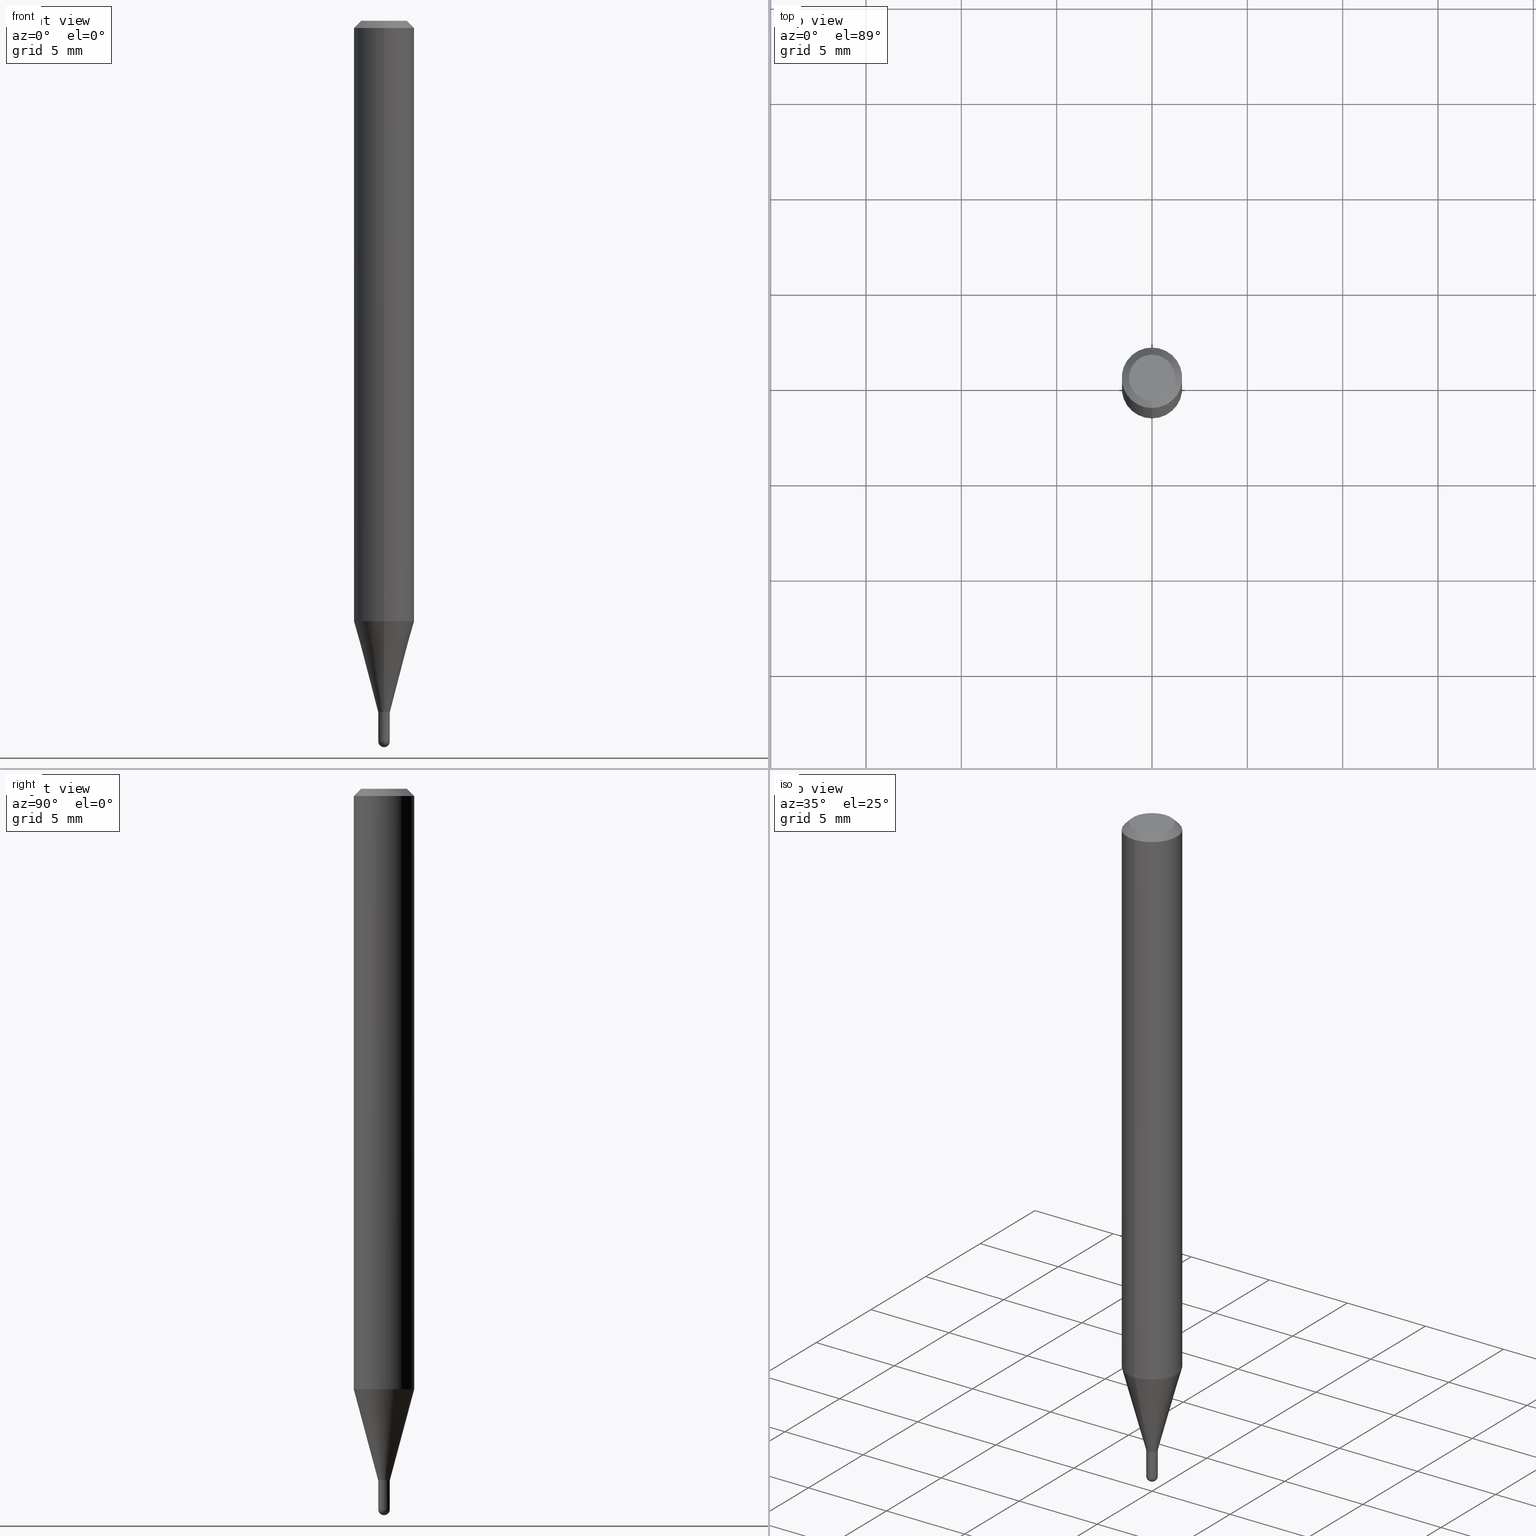
[diagram: canonical four-view strip — front | top / right | iso, engineering-drawing reading convention]
A machine part, canonical four-view strip (front | top / right | iso — engineering-drawing reading convention). The complete STEP part file that produces these views, byte-faithful:
ISO-10303-21;
HEADER;
FILE_DESCRIPTION (( 'STEP AP203' ),
    '1' );
FILE_NAME ('01447.STEP',
    '2024-03-07T21:00:26',
    ( '' ),
    ( '' ),
    'SwSTEP 2.0',
    'SolidWorks 2023',
    '' );
FILE_SCHEMA (( 'CONFIG_CONTROL_DESIGN' ));
ENDSEC;

DATA;
#1 = DIRECTION ( 'NONE',  ( -2.445468806185136597E-29, 3.491481338843145583E-15, 1.000000000000000000 ) ) ;
#2 = DIRECTION ( 'NONE',  ( -2.445468806185136597E-29, 3.491481338843145583E-15, 1.000000000000000000 ) ) ;
#3 = SECURITY_CLASSIFICATION ( '', '', #334 ) ;
#4 = LINE ( 'NONE', #121, #234 ) ;
#5 = EDGE_CURVE ( 'NONE', #444, #247, #473, .T. ) ;
#6 = CYLINDRICAL_SURFACE ( 'NONE', #412, 0.01199999999999992566 ) ;
#7 = ORIENTED_EDGE ( 'NONE', *, *, #118, .F. ) ;
#8 = COORDINATED_UNIVERSAL_TIME_OFFSET ( 5, 0, .BEHIND. ) ;
#9 = UNCERTAINTY_MEASURE_WITH_UNIT (LENGTH_MEASURE( 1.000000000000000082E-05 ), #430, 'distance_accuracy_value', 'NONE');
#10 = VERTEX_POINT ( 'NONE', #462 ) ;
#11 = PERSON_AND_ORGANIZATION ( #366, #189 ) ;
#12 = AXIS2_PLACEMENT_3D ( 'NONE', #195, #117, #429 ) ;
#13 = EDGE_LOOP ( 'NONE', ( #328, #371, #182, #133 ) ) ;
#14 = PERSON_AND_ORGANIZATION_ROLE ( 'creator' ) ;
#15 = EDGE_LOOP ( 'NONE', ( #363, #49, #91, #505, #453 ) ) ;
#16 = APPROVAL_STATUS ( 'not_yet_approved' ) ;
#17 = FACE_OUTER_BOUND ( 'NONE', #410, .T. ) ;
#18 = AXIS2_PLACEMENT_3D ( 'NONE', #276, #425, #73 ) ;
#19 = DIRECTION ( 'NONE',  ( -6.982962677686265922E-15, -1.000000000000000000, 3.491481634362364311E-15 ) ) ;
#20 = EDGE_CURVE ( 'NONE', #207, #258, #253, .T. ) ;
#21 = ORIENTED_EDGE ( 'NONE', *, *, #142, .F. ) ;
#22 = EDGE_CURVE ( 'NONE', #438, #59, #503, .T. ) ;
#23 = EDGE_LOOP ( 'NONE', ( #291, #208, #98, #201 ) ) ;
#24 = CC_DESIGN_PERSON_AND_ORGANIZATION_ASSIGNMENT ( #214, #96, ( #39 ) ) ;
#25 = DIMENSIONAL_EXPONENTS ( 1.000000000000000000, 0.000000000000000000, 0.000000000000000000, 0.000000000000000000, 0.000000000000000000, 0.000000000000000000, 0.000000000000000000 ) ;
#26 = VERTEX_POINT ( 'NONE', #375 ) ;
#27 = CONICAL_SURFACE ( 'NONE', #145, 0.01199999999999992566, 0.2617993877991575125 ) ;
#28 = DIRECTION ( 'NONE',  ( 2.445468599825168733E-29, -3.491481634362364311E-15, -1.000000000000000000 ) ) ;
#29 = CARTESIAN_POINT ( 'NONE',  ( 3.638857583603483825E-29, -5.195324232198600513E-15, -1.487999999999999989 ) ) ;
#30 = FACE_OUTER_BOUND ( 'NONE', #175, .T. ) ;
#31 = DIRECTION ( 'NONE',  ( -4.851104656540964275E-15, -0.7071067811865500152, -0.7071067811865450192 ) ) ;
#32 = CARTESIAN_POINT ( 'NONE',  ( -0.01200000000000000198, 8.526512829121203641E-17, -5.902722108305888753E-31 ) ) ;
#33 = CARTESIAN_POINT ( 'NONE',  ( 8.526512829121146941E-17, 0.01199999999999992566, -4.189777961234811161E-17 ) ) ;
#34 = CARTESIAN_POINT ( 'NONE',  ( 3.492129160550341330E-29, -4.985835773869456367E-15, -1.428000000000000158 ) ) ;
#35 = ADVANCED_FACE ( 'NONE', ( #266 ), #420, .T. ) ;
#36 = DIRECTION ( 'NONE',  ( 1.839019923739649619E-15, 0.2588190451025318972, 0.9659258262890650926 ) ) ;
#37 = CARTESIAN_POINT ( 'NONE',  ( 2.166759901879762675E-46, -3.093559411896288805E-32, -8.860305554668207261E-18 ) ) ;
#38 = DIRECTION ( 'NONE',  ( -6.982962677686265922E-15, -1.000000000000000000, 0.000000000000000000 ) ) ;
#39 = PRODUCT_DEFINITION ( 'UNKNOWN', '', #203, #129 ) ;
#40 = CARTESIAN_POINT ( 'NONE',  ( 2.166759901879762675E-46, -3.093559411896288805E-32, -8.860305554668207261E-18 ) ) ;
#41 = AXIS2_PLACEMENT_3D ( 'NONE', #34, #233, #398 ) ;
#42 = CIRCLE ( 'NONE', #263, 0.01200000000000000198 ) ;
#43 = DIRECTION ( 'NONE',  ( -2.445468599825169014E-29, 3.491481634362364311E-15, 1.000000000000000000 ) ) ;
#44 = ORIENTED_EDGE ( 'NONE', *, *, #326, .T. ) ;
#45 = DIRECTION ( 'NONE',  ( -2.445468806185136597E-29, 3.491481338843145583E-15, 1.000000000000000000 ) ) ;
#46 = VERTEX_POINT ( 'NONE', #309 ) ;
#47 = EDGE_CURVE ( 'NONE', #310, #10, #211, .T. ) ;
#48 = APPROVAL_STATUS ( 'not_yet_approved' ) ;
#49 = ORIENTED_EDGE ( 'NONE', *, *, #190, .T. ) ;
#50 = PERSON_AND_ORGANIZATION ( #366, #189 ) ;
#51 = VECTOR ( 'NONE', #424, 39.37007874015748143 ) ;
#52 = CARTESIAN_POINT ( 'NONE',  ( -8.379555213219975405E-17, -0.01200000000000491125, -1.428000000000000158 ) ) ;
#53 = ORIENTED_EDGE ( 'NONE', *, *, #95, .F. ) ;
#54 = APPROVAL_DATE_TIME ( #489, #396 ) ;
#55 = CARTESIAN_POINT ( 'NONE',  ( 4.440892098500625669E-16, 0.06250000000000000000, -2.182176021476477694E-16 ) ) ;
#56 = EDGE_CURVE ( 'NONE', #46, #325, #498, .T. ) ;
#57 = DIRECTION ( 'NONE',  ( -6.982962677686265922E-15, -1.000000000000000000, 0.000000000000000000 ) ) ;
#58 = CC_DESIGN_SECURITY_CLASSIFICATION ( #3, ( #203 ) ) ;
#59 = VERTEX_POINT ( 'NONE', #374 ) ;
#60 = ADVANCED_FACE ( 'NONE', ( #17 ), #180, .T. ) ;
#61 = ADVANCED_BREP_SHAPE_REPRESENTATION ( '01447', ( #65, #63, #338 ), #188 ) ;
#62 = ORIENTED_EDGE ( 'NONE', *, *, #228, .T. ) ;
#63 = MANIFOLD_SOLID_BREP ( 'Body-Move/Copy2[2]', #382 ) ;
#64 = ORIENTED_EDGE ( 'NONE', *, *, #482, .T. ) ;
#65 = MANIFOLD_SOLID_BREP ( 'Body-Move/Copy2[1]', #485 ) ;
#66 = PLANE ( 'NONE',  #102 ) ;
#67 = CIRCLE ( 'NONE', #496, 0.06250000000000000000 ) ;
#68 = CARTESIAN_POINT ( 'NONE',  ( -0.01200000000000000198, -5.005314663742094257E-15, -1.487999999999999989 ) ) ;
#69 = LINE ( 'NONE', #477, #51 ) ;
#70 = CARTESIAN_POINT ( 'NONE',  ( 3.668202899737756008E-31, -5.237222451543549696E-17, -0.01500000000000000812 ) ) ;
#71 = DIRECTION ( 'NONE',  ( -2.445468599825169014E-29, 3.491481634362364311E-15, 1.000000000000000000 ) ) ;
#72 = DIRECTION ( 'NONE',  ( -6.982962677686265922E-15, -1.000000000000000000, 3.483106191921935554E-15 ) ) ;
#73 = DIRECTION ( 'NONE',  ( -6.982962677686266711E-15, -1.000000000000000000, 0.000000000000000000 ) ) ;
#74 = CARTESIAN_POINT ( 'NONE',  ( 8.171241461244642709E-17, 0.01149999999999501421, -1.428000000000000158 ) ) ;
#75 = CONICAL_SURFACE ( 'NONE', #171, 0.06250000000000000000, 0.7853981633974483900 ) ;
#76 = AXIS2_PLACEMENT_3D ( 'NONE', #237, #456, #460 ) ;
#77 = LOCAL_TIME ( 16, 0, 26.00000000000000000, #288 ) ;
#78 = CARTESIAN_POINT ( 'NONE',  ( -0.01200000000000000025, -5.005314663742094257E-15, -1.428000000000000158 ) ) ;
#79 = CYLINDRICAL_SURFACE ( 'NONE', #76, 0.01199999999999992566 ) ;
#80 = CC_DESIGN_DATE_AND_TIME_ASSIGNMENT ( #248, #246, ( #39 ) ) ;
#81 = DIRECTION ( 'NONE',  ( -2.445468806185136877E-29, 3.491481338843145188E-15, 1.000000000000000000 ) ) ;
#82 =( NAMED_UNIT ( * ) SI_UNIT ( $, .STERADIAN. ) SOLID_ANGLE_UNIT ( ) );
#83 = FACE_OUTER_BOUND ( 'NONE', #183, .T. ) ;
#84 = VERTEX_POINT ( 'NONE', #141 ) ;
#85 = AXIS2_PLACEMENT_3D ( 'NONE', #70, #229, #72 ) ;
#86 = PERSON_AND_ORGANIZATION ( #366, #189 ) ;
#87 = EDGE_CURVE ( 'NONE', #59, #139, #108, .T. ) ;
#88 = ORIENTED_EDGE ( 'NONE', *, *, #136, .F. ) ;
#89 = ORIENTED_EDGE ( 'NONE', *, *, #355, .T. ) ;
#90 = CALENDAR_DATE ( 2024, 7, 3 ) ;
#91 = ORIENTED_EDGE ( 'NONE', *, *, #87, .F. ) ;
#92 = APPROVAL_ROLE ( '' ) ;
#93 = AXIS2_PLACEMENT_3D ( 'NONE', #284, #153, #239 ) ;
#94 = ORIENTED_EDGE ( 'NONE', *, *, #95, .T. ) ;
#95 = EDGE_CURVE ( 'NONE', #84, #305, #391, .T. ) ;
#96 = PERSON_AND_ORGANIZATION_ROLE ( 'creator' ) ;
#97 = CARTESIAN_POINT ( 'NONE',  ( 8.526512829124609301E-17, 0.01199999999999490016, -1.427500000000000213 ) ) ;
#98 = ORIENTED_EDGE ( 'NONE', *, *, #5, .F. ) ;
#99 = EDGE_CURVE ( 'NONE', #84, #167, #390, .T. ) ;
#100 = ORIENTED_EDGE ( 'NONE', *, *, #323, .T. ) ;
#101 = VECTOR ( 'NONE', #302, 39.37007874015748143 ) ;
#102 = AXIS2_PLACEMENT_3D ( 'NONE', #150, #28, #461 ) ;
#103 = ORIENTED_EDGE ( 'NONE', *, *, #336, .F. ) ;
#104 = CARTESIAN_POINT ( 'NONE',  ( 3.492129160550341330E-29, -4.985835773869456367E-15, -1.428000000000000158 ) ) ;
#105 = DIRECTION ( 'NONE',  ( -6.982962677686266711E-15, -1.000000000000000000, 0.000000000000000000 ) ) ;
#106 = ORIENTED_EDGE ( 'NONE', *, *, #47, .F. ) ;
#107 = DIRECTION ( 'NONE',  ( 1.000000000000000000, -7.105427357601001070E-15, 4.926315508542082329E-29 ) ) ;
#108 = CIRCLE ( 'NONE', #317, 0.01200000000000000025 ) ;
#109 = DIRECTION ( 'NONE',  ( 1.000000000000000000, -6.982962677686266711E-15, 4.883557194083112901E-29 ) ) ;
#110 = VECTOR ( 'NONE', #204, 39.37007874015748143 ) ;
#111 = CC_DESIGN_APPROVAL ( #242, ( #203 ) ) ;
#112 = EDGE_CURVE ( 'NONE', #26, #247, #426, .T. ) ;
#113 = DIRECTION ( 'NONE',  ( 6.982962677686265922E-15, 1.000000000000000000, -3.483106191921935554E-15 ) ) ;
#114 = CARTESIAN_POINT ( 'NONE',  ( 0.000000000000000000, 0.000000000000000000, 0.000000000000000000 ) ) ;
#115 = DIRECTION ( 'NONE',  ( 2.438088387897960049E-29, -3.491481338843145188E-15, -1.000000000000000000 ) ) ;
#116 = ADVANCED_FACE ( 'NONE', ( #194 ), #75, .T. ) ;
#117 = DIRECTION ( 'NONE',  ( 2.445468599825169014E-29, -3.491481634362364311E-15, -1.000000000000000000 ) ) ;
#118 = EDGE_CURVE ( 'NONE', #342, #46, #269, .T. ) ;
#119 = VECTOR ( 'NONE', #479, 39.37007874015748143 ) ;
#120 = DIRECTION ( 'NONE',  ( -2.445468599825169014E-29, 3.491481634362364311E-15, 1.000000000000000000 ) ) ;
#121 = CARTESIAN_POINT ( 'NONE',  ( -4.364351673553916201E-16, -0.06250000000000000000, 2.182176021476477694E-16 ) ) ;
#122 = ORIENTED_EDGE ( 'NONE', *, *, #336, .T. ) ;
#123 = DIRECTION ( 'NONE',  ( -6.982962677686265922E-15, -1.000000000000000000, 3.491481634362364311E-15 ) ) ;
#124 = EDGE_LOOP ( 'NONE', ( #491, #224, #7, #418 ) ) ;
#125 = DIRECTION ( 'NONE',  ( 1.000000000000000000, 0.000000000000000000, 0.000000000000000000 ) ) ;
#126 = CYLINDRICAL_SURFACE ( 'NONE', #280, 0.01200000000000000198 ) ;
#127 = ORIENTED_EDGE ( 'NONE', *, *, #506, .T. ) ;
#128 = PRODUCT_DEFINITION_SHAPE ( 'NONE', 'NONE',  #39 ) ;
#129 = DESIGN_CONTEXT ( 'detailed design', #480, 'design' ) ;
#130 = ORIENTED_EDGE ( 'NONE', *, *, #142, .T. ) ;
#131 = PERSON_AND_ORGANIZATION ( #366, #189 ) ;
#132 = EDGE_CURVE ( 'NONE', #241, #444, #69, .T. ) ;
#133 = ORIENTED_EDGE ( 'NONE', *, *, #326, .F. ) ;
#134 = FACE_OUTER_BOUND ( 'NONE', #415, .T. ) ;
#135 = ORIENTED_EDGE ( 'NONE', *, *, #506, .F. ) ;
#136 = EDGE_CURVE ( 'NONE', #26, #241, #200, .T. ) ;
#137 = VECTOR ( 'NONE', #466, 39.37007874015748143 ) ;
#138 = AXIS2_PLACEMENT_3D ( 'NONE', #332, #329, #296 ) ;
#139 = VERTEX_POINT ( 'NONE', #78 ) ;
#140 = ADVANCED_FACE ( 'NONE', ( #428 ), #27, .T. ) ;
#141 = CARTESIAN_POINT ( 'NONE',  ( -3.773273898774340269E-16, -0.04749999999999999362, 1.569850720775441176E-16 ) ) ;
#142 = EDGE_CURVE ( 'NONE', #448, #438, #199, .T. ) ;
#143 = SPHERICAL_SURFACE ( 'NONE', #436, 0.01200000000000015464 ) ;
#144 = ORIENTED_EDGE ( 'NONE', *, *, #370, .F. ) ;
#145 = AXIS2_PLACEMENT_3D ( 'NONE', #155, #120, #38 ) ;
#146 = APPROVAL_PERSON_ORGANIZATION ( #86, #463, #176 ) ;
#147 = DIRECTION ( 'NONE',  ( -2.445468599825169014E-29, 3.491481634362364311E-15, 1.000000000000000000 ) ) ;
#148 = CARTESIAN_POINT ( 'NONE',  ( 3.637831384056468447E-29, -5.196793808357578073E-15, -1.487999999999999989 ) ) ;
#149 = DIRECTION ( 'NONE',  ( -2.445468599825169014E-29, 3.491481634362364311E-15, 1.000000000000000000 ) ) ;
#150 = CARTESIAN_POINT ( 'NONE',  ( 3.316907271900976096E-16, 0.04749999999999999362, -1.702755304095464023E-16 ) ) ;
#151 = CC_DESIGN_PERSON_AND_ORGANIZATION_ASSIGNMENT ( #11, #434, ( #203 ) ) ;
#152 = CONICAL_SURFACE ( 'NONE', #319, 0.01199999999999992566, 0.2617993877991575125 ) ;
#153 = DIRECTION ( 'NONE',  ( -2.445468599825168733E-29, 3.491481634362364311E-15, 1.000000000000000000 ) ) ;
#154 = CARTESIAN_POINT ( 'NONE',  ( -4.364351673553613969E-16, -0.06250000000000434375, -1.239531434217777450 ) ) ;
#155 = CARTESIAN_POINT ( 'NONE',  ( 3.492129160550341330E-29, -4.985835773869456367E-15, -1.428000000000000158 ) ) ;
#156 = CARTESIAN_POINT ( 'NONE',  ( -8.379555213219975405E-17, -0.01200000000000491125, -1.428000000000000158 ) ) ;
#157 = CC_DESIGN_PERSON_AND_ORGANIZATION_ASSIGNMENT ( #301, #14, ( #203 ) ) ;
#158 = FACE_OUTER_BOUND ( 'NONE', #330, .T. ) ;
#159 = CARTESIAN_POINT ( 'NONE',  ( 3.638857583603483825E-29, -5.195324232198600513E-15, -1.487999999999999989 ) ) ;
#160 = LINE ( 'NONE', #318, #427 ) ;
#161 = AXIS2_PLACEMENT_3D ( 'NONE', #417, #380, #184 ) ;
#162 = AXIS2_PLACEMENT_3D ( 'NONE', #443, #492, #411 ) ;
#163 = CARTESIAN_POINT ( 'NONE',  ( 0.000000000000000000, 0.000000000000000000, 0.000000000000000000 ) ) ;
#164 = EDGE_LOOP ( 'NONE', ( #299, #94 ) ) ;
#165 = DIRECTION ( 'NONE',  ( 0.000000000000000000, 0.000000000000000000, 1.000000000000000000 ) ) ;
#166 = DIRECTION ( 'NONE',  ( -2.445468599825169014E-29, 3.491481634362364311E-15, 1.000000000000000000 ) ) ;
#167 = VERTEX_POINT ( 'NONE', #281 ) ;
#168 = DIRECTION ( 'NONE',  ( 1.000000000000000000, -6.982962677686250144E-15, 0.000000000000000000 ) ) ;
#169 = DATE_TIME_ROLE ( 'classification_date' ) ;
#170 = ORIENTED_EDGE ( 'NONE', *, *, #219, .F. ) ;
#171 = AXIS2_PLACEMENT_3D ( 'NONE', #315, #507, #113 ) ;
#172 = CIRCLE ( 'NONE', #359, 0.04749999999999999362 ) ;
#173 = CC_DESIGN_APPROVAL ( #396, ( #39 ) ) ;
#174 = COORDINATED_UNIVERSAL_TIME_OFFSET ( 5, 0, .BEHIND. ) ;
#175 = EDGE_LOOP ( 'NONE', ( #304, #127, #62, #103 ) ) ;
#176 = APPROVAL_ROLE ( '' ) ;
#177 = ADVANCED_FACE ( 'NONE', ( #191 ), #273, .F. ) ;
#178 = ORIENTED_EDGE ( 'NONE', *, *, #458, .T. ) ;
#179 = CARTESIAN_POINT ( 'NONE',  ( -8.030407079335712901E-17, -0.01150000000000498540, -1.428000000000000158 ) ) ;
#180 = CYLINDRICAL_SURFACE ( 'NONE', #446, 0.01200000000000000198 ) ;
#181 = CIRCLE ( 'NONE', #402, 0.01199999999999992566 ) ;
#182 = ORIENTED_EDGE ( 'NONE', *, *, #439, .F. ) ;
#183 = EDGE_LOOP ( 'NONE', ( #225, #481 ) ) ;
#184 = DIRECTION ( 'NONE',  ( -6.982962677686265922E-15, -1.000000000000000000, 0.000000000000000000 ) ) ;
#185 = CARTESIAN_POINT ( 'NONE',  ( 0.000000000000000000, 0.000000000000000000, 0.000000000000000000 ) ) ;
#186 = ADVANCED_FACE ( 'NONE', ( #468 ), #152, .T. ) ;
#187 = DIRECTION ( 'NONE',  ( -6.982962677686266711E-15, -1.000000000000000000, 3.491481634362365100E-15 ) ) ;
#188 =( GEOMETRIC_REPRESENTATION_CONTEXT ( 3 ) GLOBAL_UNCERTAINTY_ASSIGNED_CONTEXT ( ( #9 ) ) GLOBAL_UNIT_ASSIGNED_CONTEXT ( ( #430, #478, #82 ) ) REPRESENTATION_CONTEXT ( 'NONE', 'WORKASPACE' ) );
#189 = ORGANIZATION ( 'UNSPECIFIED', 'UNSPECIFIED', '' ) ;
#190 = EDGE_CURVE ( 'NONE', #308, #139, #313, .T. ) ;
#191 = FACE_OUTER_BOUND ( 'NONE', #297, .T. ) ;
#192 = DIRECTION ( 'NONE',  ( -6.982962677686265922E-15, -1.000000000000000000, 3.491481634362364311E-15 ) ) ;
#193 = CARTESIAN_POINT ( 'NONE',  ( 0.000000000000000000, 0.000000000000000000, 0.000000000000000000 ) ) ;
#194 = FACE_OUTER_BOUND ( 'NONE', #499, .T. ) ;
#195 = CARTESIAN_POINT ( 'NONE',  ( 3.668202899737756008E-31, -5.237222451543549696E-17, -0.01500000000000000812 ) ) ;
#196 = DIRECTION ( 'NONE',  ( -6.982962677686266711E-15, -1.000000000000000000, 3.491481634362365100E-15 ) ) ;
#197 = FACE_OUTER_BOUND ( 'NONE', #13, .T. ) ;
#198 = FACE_OUTER_BOUND ( 'NONE', #256, .T. ) ;
#199 = CIRCLE ( 'NONE', #344, 0.01200000000000000198 ) ;
#200 = CIRCLE ( 'NONE', #343, 0.01149999999999999981 ) ;
#201 = ORIENTED_EDGE ( 'NONE', *, *, #132, .F. ) ;
#202 = AXIS2_PLACEMENT_3D ( 'NONE', #403, #115, #350 ) ;
#203 = PRODUCT_DEFINITION_FORMATION_WITH_SPECIFIED_SOURCE ( 'ANY', '', #442, .NOT_KNOWN. ) ;
#204 = DIRECTION ( 'NONE',  ( -2.445468599825169014E-29, 3.491481634362364311E-15, 1.000000000000000000 ) ) ;
#205 = DIRECTION ( 'NONE',  ( 4.937700262164548042E-15, 0.7071067811865451302, -0.7071067811865499042 ) ) ;
#206 = EDGE_CURVE ( 'NONE', #10, #308, #367, .T. ) ;
#207 = VERTEX_POINT ( 'NONE', #459 ) ;
#208 = ORIENTED_EDGE ( 'NONE', *, *, #112, .T. ) ;
#209 = APPROVAL_ROLE ( '' ) ;
#210 = ORIENTED_EDGE ( 'NONE', *, *, #99, .F. ) ;
#211 = CIRCLE ( 'NONE', #226, 0.01200000000000015464 ) ;
#212 = AXIS2_PLACEMENT_3D ( 'NONE', #267, #272, #423 ) ;
#213 = CC_DESIGN_PERSON_AND_ORGANIZATION_ASSIGNMENT ( #50, #369, ( #442 ) ) ;
#214 = PERSON_AND_ORGANIZATION ( #366, #189 ) ;
#215 = ORIENTED_EDGE ( 'NONE', *, *, #439, .T. ) ;
#216 = CALENDAR_DATE ( 2024, 7, 3 ) ;
#217 = DIRECTION ( 'NONE',  ( -2.445468599825169014E-29, 3.491481634362364311E-15, 1.000000000000000000 ) ) ;
#218 = COORDINATED_UNIVERSAL_TIME_OFFSET ( 5, 0, .BEHIND. ) ;
#219 = EDGE_CURVE ( 'NONE', #258, #207, #181, .T. ) ;
#220 = ORIENTED_EDGE ( 'NONE', *, *, #228, .F. ) ;
#221 = VECTOR ( 'NONE', #394, 39.37007874015748854 ) ;
#222 = EDGE_LOOP ( 'NONE', ( #53, #368, #215, #361 ) ) ;
#223 = DIRECTION ( 'NONE',  ( -2.445468599825169014E-29, 3.491481634362364311E-15, 1.000000000000000000 ) ) ;
#224 = ORIENTED_EDGE ( 'NONE', *, *, #346, .T. ) ;
#225 = ORIENTED_EDGE ( 'NONE', *, *, #87, .T. ) ;
#226 = AXIS2_PLACEMENT_3D ( 'NONE', #339, #107, #268 ) ;
#227 = CIRCLE ( 'NONE', #85, 0.06250000000000000000 ) ;
#228 = EDGE_CURVE ( 'NONE', #247, #444, #376, .T. ) ;
#229 = DIRECTION ( 'NONE',  ( -2.445468599825169014E-29, 3.491481634362364311E-15, 1.000000000000000000 ) ) ;
#230 = EDGE_CURVE ( 'NONE', #310, #448, #502, .T. ) ;
#231 = DIRECTION ( 'NONE',  ( -6.982962677686265133E-15, -1.000000000000000000, 0.000000000000000000 ) ) ;
#232 = AXIS2_PLACEMENT_3D ( 'NONE', #37, #235, #196 ) ;
#233 = DIRECTION ( 'NONE',  ( -2.445468599825169014E-29, 3.491481634362364311E-15, 1.000000000000000000 ) ) ;
#234 = VECTOR ( 'NONE', #240, 39.37007874015748143 ) ;
#235 = DIRECTION ( 'NONE',  ( -2.445468599825169014E-29, 3.491481634362364311E-15, 1.000000000000000000 ) ) ;
#236 = CYLINDRICAL_SURFACE ( 'NONE', #300, 0.06250000000000000000 ) ;
#237 = CARTESIAN_POINT ( 'NONE',  ( 0.000000000000000000, 0.000000000000000000, 0.000000000000000000 ) ) ;
#238 = DIRECTION ( 'NONE',  ( 1.000000000000000000, -6.982962677686251722E-15, 0.000000000000000000 ) ) ;
#239 = DIRECTION ( 'NONE',  ( -6.982962677686265922E-15, -1.000000000000000000, 3.491481634362364311E-15 ) ) ;
#240 = DIRECTION ( 'NONE',  ( -2.445468599825169014E-29, 3.491481634362364311E-15, 1.000000000000000000 ) ) ;
#241 = VERTEX_POINT ( 'NONE', #179 ) ;
#242 = APPROVAL ( #48, 'UNSPECIFIED' ) ;
#243 = FACE_OUTER_BOUND ( 'NONE', #294, .T. ) ;
#244 = CIRCLE ( 'NONE', #508, 0.01200000000000000198 ) ;
#245 = ORIENTED_EDGE ( 'NONE', *, *, #230, .T. ) ;
#246 = DATE_TIME_ROLE ( 'creation_date' ) ;
#247 = VERTEX_POINT ( 'NONE', #97 ) ;
#248 = DATE_AND_TIME ( #90, #77 ) ;
#249 = ORIENTED_EDGE ( 'NONE', *, *, #22, .T. ) ;
#250 = EDGE_CURVE ( 'NONE', #139, #59, #254, .T. ) ;
#251 = DATE_AND_TIME ( #331, #385 ) ;
#252 = ORIENTED_EDGE ( 'NONE', *, *, #307, .F. ) ;
#253 = CIRCLE ( 'NONE', #262, 0.01199999999999992566 ) ;
#254 = CIRCLE ( 'NONE', #162, 0.01200000000000000025 ) ;
#255 = DATE_AND_TIME ( #216, #455 ) ;
#256 = EDGE_LOOP ( 'NONE', ( #440, #488, #413, #21 ) ) ;
#257 = MECHANICAL_CONTEXT ( 'NONE', #490, 'mechanical' ) ;
#258 = VERTEX_POINT ( 'NONE', #52 ) ;
#259 = CC_DESIGN_DATE_AND_TIME_ASSIGNMENT ( #293, #169, ( #3 ) ) ;
#260 = DIRECTION ( 'NONE',  ( -6.982962677686265922E-15, -1.000000000000000000, 0.000000000000000000 ) ) ;
#261 = ORIENTED_EDGE ( 'NONE', *, *, #346, .F. ) ;
#262 = AXIS2_PLACEMENT_3D ( 'NONE', #381, #147, #57 ) ;
#263 = AXIS2_PLACEMENT_3D ( 'NONE', #159, #316, #279 ) ;
#264 = EDGE_LOOP ( 'NONE', ( #261, #419, #64, #493 ) ) ;
#265 = FACE_OUTER_BOUND ( 'NONE', #164, .T. ) ;
#266 = FACE_OUTER_BOUND ( 'NONE', #322, .T. ) ;
#267 = CARTESIAN_POINT ( 'NONE',  ( 3.668202899737756008E-31, -5.237222451543549696E-17, -0.01500000000000000812 ) ) ;
#268 = DIRECTION ( 'NONE',  ( 7.105427357601001070E-15, 1.000000000000000000, 0.000000000000000000 ) ) ;
#269 = CIRCLE ( 'NONE', #500, 0.06250000000000000000 ) ;
#270 = CONICAL_SURFACE ( 'NONE', #337, 0.01149999999999999981, 0.7853981633974739252 ) ;
#271 = ADVANCED_FACE ( 'NONE', ( #134 ), #143, .T. ) ;
#272 = DIRECTION ( 'NONE',  ( -2.445468599825169014E-29, 3.491481634362364311E-15, 1.000000000000000000 ) ) ;
#273 = PLANE ( 'NONE',  #93 ) ;
#274 = DIRECTION ( 'NONE',  ( -2.445468806185136597E-29, 3.491481338843145583E-15, 1.000000000000000000 ) ) ;
#275 = CARTESIAN_POINT ( 'NONE',  ( 3.492129160550341330E-29, -4.985835773869456367E-15, -1.428000000000000158 ) ) ;
#276 = CARTESIAN_POINT ( 'NONE',  ( 3.637831384056468447E-29, -5.196793808357578073E-15, -1.487999999999999989 ) ) ;
#277 = CARTESIAN_POINT ( 'NONE',  ( -4.287811248607203282E-16, -0.06250000000000005551, -0.01499999999999979128 ) ) ;
#278 = DIRECTION ( 'NONE',  ( -2.445468599825169014E-29, 3.491481634362364311E-15, 1.000000000000000000 ) ) ;
#279 = DIRECTION ( 'NONE',  ( 1.000000000000000000, -6.982962677686250144E-15, 0.000000000000000000 ) ) ;
#280 = AXIS2_PLACEMENT_3D ( 'NONE', #389, #289, #431 ) ;
#281 = CARTESIAN_POINT ( 'NONE',  ( -4.364351673553912750E-16, -0.06250000000000005551, -0.01499999999999979128 ) ) ;
#282 = LINE ( 'NONE', #156, #221 ) ;
#283 = LINE ( 'NONE', #483, #421 ) ;
#284 = CARTESIAN_POINT ( 'NONE',  ( 3.492129160550341330E-29, -4.985835773869456367E-15, -1.428000000000000158 ) ) ;
#285 = DIRECTION ( 'NONE',  ( -2.445468599825169014E-29, 3.491481634362364311E-15, 1.000000000000000000 ) ) ;
#286 = CARTESIAN_POINT ( 'NONE',  ( 3.492129160550341330E-29, -4.985835773869456367E-15, -1.428000000000000158 ) ) ;
#287 = ORIENTED_EDGE ( 'NONE', *, *, #132, .T. ) ;
#288 = COORDINATED_UNIVERSAL_TIME_OFFSET ( 5, 0, .BEHIND. ) ;
#289 = DIRECTION ( 'NONE',  ( -2.445468806185136597E-29, 3.491481338843145583E-15, 1.000000000000000000 ) ) ;
#290 = AXIS2_PLACEMENT_3D ( 'NONE', #383, #451, #260 ) ;
#291 = ORIENTED_EDGE ( 'NONE', *, *, #370, .T. ) ;
#292 = APPROVAL_PERSON_ORGANIZATION ( #131, #242, #92 ) ;
#293 = DATE_AND_TIME ( #372, #487 ) ;
#294 = EDGE_LOOP ( 'NONE', ( #135, #170, #122, #408 ) ) ;
#295 = CALENDAR_DATE ( 2024, 7, 3 ) ;
#296 = DIRECTION ( 'NONE',  ( -6.982962677686266711E-15, -1.000000000000000000, 0.000000000000000000 ) ) ;
#297 = EDGE_LOOP ( 'NONE', ( #144, #88 ) ) ;
#298 = APPROVAL_DATE_TIME ( #251, #463 ) ;
#299 = ORIENTED_EDGE ( 'NONE', *, *, #373, .T. ) ;
#300 = AXIS2_PLACEMENT_3D ( 'NONE', #163, #285, #192 ) ;
#301 = PERSON_AND_ORGANIZATION ( #366, #189 ) ;
#302 = DIRECTION ( 'NONE',  ( -2.445468806185136877E-29, 3.491481338843145188E-15, 1.000000000000000000 ) ) ;
#303 = ADVANCED_FACE ( 'NONE', ( #265 ), #66, .F. ) ;
#304 = ORIENTED_EDGE ( 'NONE', *, *, #20, .F. ) ;
#305 = VERTEX_POINT ( 'NONE', #504 ) ;
#306 = VECTOR ( 'NONE', #217, 39.37007874015748143 ) ;
#307 = EDGE_CURVE ( 'NONE', #325, #167, #464, .T. ) ;
#308 = VERTEX_POINT ( 'NONE', #68 ) ;
#309 = CARTESIAN_POINT ( 'NONE',  ( 4.440892098500927901E-16, 0.06249999999999567013, -1.239531434217777894 ) ) ;
#310 = VERTEX_POINT ( 'NONE', #395 ) ;
#311 = PRODUCT_RELATED_PRODUCT_CATEGORY ( 'detail', '', ( #442 ) ) ;
#312 = CARTESIAN_POINT ( 'NONE',  ( 3.638857583603483825E-29, -5.195324232198600513E-15, -1.487999999999999989 ) ) ;
#313 = LINE ( 'NONE', #32, #384 ) ;
#314 = SPHERICAL_SURFACE ( 'NONE', #18, 0.01200000000000015464 ) ;
#315 = CARTESIAN_POINT ( 'NONE',  ( 3.668202899737756008E-31, -5.237222451543549696E-17, -0.01500000000000000812 ) ) ;
#316 = DIRECTION ( 'NONE',  ( -2.445468806185136597E-29, 3.491481338843145583E-15, 1.000000000000000000 ) ) ;
#317 = AXIS2_PLACEMENT_3D ( 'NONE', #320, #274, #238 ) ;
#318 = CARTESIAN_POINT ( 'NONE',  ( 4.364351673553919652E-16, 0.06249999999999995143, -0.01500000000000022669 ) ) ;
#319 = AXIS2_PLACEMENT_3D ( 'NONE', #275, #71, #386 ) ;
#320 = CARTESIAN_POINT ( 'NONE',  ( 3.492129455232375114E-29, -4.985835351868012196E-15, -1.428000000000000158 ) ) ;
#321 = CARTESIAN_POINT ( 'NONE',  ( 3.031235200875832251E-29, -4.327801237786212158E-15, -1.239531434217777672 ) ) ;
#322 = EDGE_LOOP ( 'NONE', ( #340, #178, #44, #252 ) ) ;
#323 = EDGE_CURVE ( 'NONE', #305, #325, #160, .T. ) ;
#324 = FACE_OUTER_BOUND ( 'NONE', #15, .T. ) ;
#325 = VERTEX_POINT ( 'NONE', #358 ) ;
#326 = EDGE_CURVE ( 'NONE', #342, #167, #4, .T. ) ;
#327 = COORDINATED_UNIVERSAL_TIME_OFFSET ( 5, 0, .BEHIND. ) ;
#328 = ORIENTED_EDGE ( 'NONE', *, *, #118, .T. ) ;
#329 = DIRECTION ( 'NONE',  ( -1.000000000000000000, 6.982962677686265922E-15, -4.883557194083112340E-29 ) ) ;
#330 = EDGE_LOOP ( 'NONE', ( #484, #377, #287, #220 ) ) ;
#331 = CALENDAR_DATE ( 2024, 7, 3 ) ;
#332 = CARTESIAN_POINT ( 'NONE',  ( 3.637831384056468447E-29, -5.196793808357578073E-15, -1.487999999999999989 ) ) ;
#333 = ORIENTED_EDGE ( 'NONE', *, *, #206, .F. ) ;
#334 = SECURITY_CLASSIFICATION_LEVEL ( 'unclassified' ) ;
#335 = CARTESIAN_POINT ( 'NONE',  ( 0.000000000000000000, 0.000000000000000000, 0.000000000000000000 ) ) ;
#336 = EDGE_CURVE ( 'NONE', #258, #444, #362, .T. ) ;
#337 = AXIS2_PLACEMENT_3D ( 'NONE', #511, #471, #476 ) ;
#338 = AXIS2_PLACEMENT_3D ( 'NONE', #114, #165, #125 ) ;
#339 = CARTESIAN_POINT ( 'NONE',  ( 3.637831384056468447E-29, -5.196793808357578073E-15, -1.487999999999999989 ) ) ;
#340 = ORIENTED_EDGE ( 'NONE', *, *, #56, .F. ) ;
#341 = ADVANCED_FACE ( 'NONE', ( #30 ), #6, .F. ) ;
#342 = VERTEX_POINT ( 'NONE', #154 ) ;
#343 = AXIS2_PLACEMENT_3D ( 'NONE', #347, #393, #231 ) ;
#344 = AXIS2_PLACEMENT_3D ( 'NONE', #29, #2, #475 ) ;
#345 = ORIENTED_EDGE ( 'NONE', *, *, #307, .T. ) ;
#346 = EDGE_CURVE ( 'NONE', #207, #46, #283, .T. ) ;
#347 = CARTESIAN_POINT ( 'NONE',  ( 3.492129160550341330E-29, -4.985835773869456367E-15, -1.428000000000000158 ) ) ;
#348 = APPLICATION_PROTOCOL_DEFINITION ( 'international standard', 'config_control_design', 1994, #490 ) ;
#349 = LOCAL_TIME ( 16, 0, 26.00000000000000000, #8 ) ;
#350 = DIRECTION ( 'NONE',  ( -1.000000000000000000, 6.982962677686265922E-15, -4.876176775795935793E-29 ) ) ;
#351 = ADVANCED_FACE ( 'NONE', ( #324 ), #126, .T. ) ;
#352 =( LENGTH_UNIT ( ) NAMED_UNIT ( * ) SI_UNIT ( $, .METRE. ) );
#353 = PLANE ( 'NONE',  #202 ) ;
#354 = DIRECTION ( 'NONE',  ( -2.445468599825169014E-29, 3.491481634362364311E-15, 1.000000000000000000 ) ) ;
#355 = EDGE_CURVE ( 'NONE', #308, #448, #244, .T. ) ;
#356 = CARTESIAN_POINT ( 'NONE',  ( -8.379555213223467347E-17, -0.01199999999999992566, 4.189777961234811161E-17 ) ) ;
#357 = VECTOR ( 'NONE', #31, 39.37007874015748143 ) ;
#358 = CARTESIAN_POINT ( 'NONE',  ( 4.440892098500930859E-16, 0.06249999999999995143, -0.01500000000000022669 ) ) ;
#359 = AXIS2_PLACEMENT_3D ( 'NONE', #40, #433, #187 ) ;
#360 = APPROVAL_PERSON_ORGANIZATION ( #494, #396, #209 ) ;
#361 = ORIENTED_EDGE ( 'NONE', *, *, #323, .F. ) ;
#362 = LINE ( 'NONE', #356, #119 ) ;
#363 = ORIENTED_EDGE ( 'NONE', *, *, #206, .T. ) ;
#364 = PERSON_AND_ORGANIZATION ( #366, #189 ) ;
#365 = ORIENTED_EDGE ( 'NONE', *, *, #190, .F. ) ;
#366 = PERSON ( 'UNSPECIFIED', 'UNSPECIFIED', 'UNSPECIFIED', ('UNSPECIFIED'), ('UNSPECIFIED'), ('UNSPECIFIED') ) ;
#367 = CIRCLE ( 'NONE', #486, 0.01200000000000000198 ) ;
#368 = ORIENTED_EDGE ( 'NONE', *, *, #99, .T. ) ;
#369 = PERSON_AND_ORGANIZATION_ROLE ( 'design_owner' ) ;
#370 = EDGE_CURVE ( 'NONE', #241, #26, #454, .T. ) ;
#371 = ORIENTED_EDGE ( 'NONE', *, *, #56, .T. ) ;
#372 = CALENDAR_DATE ( 2024, 7, 3 ) ;
#373 = EDGE_CURVE ( 'NONE', #305, #84, #172, .T. ) ;
#374 = CARTESIAN_POINT ( 'NONE',  ( 0.01200000000000000025, -5.069630904000247523E-15, -1.428000000000000158 ) ) ;
#375 = CARTESIAN_POINT ( 'NONE',  ( 8.348877145184642029E-17, 0.01149999999999501421, -1.428000000000000158 ) ) ;
#376 = CIRCLE ( 'NONE', #290, 0.01199999999999992566 ) ;
#377 = ORIENTED_EDGE ( 'NONE', *, *, #136, .T. ) ;
#378 = ADVANCED_FACE ( 'NONE', ( #83 ), #353, .F. ) ;
#379 = DIRECTION ( 'NONE',  ( -6.982962677686265922E-15, -1.000000000000000000, 0.000000000000000000 ) ) ;
#380 = DIRECTION ( 'NONE',  ( -2.445468599825169014E-29, 3.491481634362364311E-15, 1.000000000000000000 ) ) ;
#381 = CARTESIAN_POINT ( 'NONE',  ( 3.492129160550341330E-29, -4.985835773869456367E-15, -1.428000000000000158 ) ) ;
#382 = CLOSED_SHELL ( 'NONE', ( #341, #465, #416, #435, #186, #140, #35, #116, #303, #177, #405, #422 ) ) ;
#383 = CARTESIAN_POINT ( 'NONE',  ( 3.490906426250429498E-29, -4.984090033052276483E-15, -1.427500000000000213 ) ) ;
#384 = VECTOR ( 'NONE', #81, 39.37007874015748143 ) ;
#385 = LOCAL_TIME ( 16, 0, 26.00000000000000000, #327 ) ;
#386 = DIRECTION ( 'NONE',  ( -6.982962677686265922E-15, -1.000000000000000000, 0.000000000000000000 ) ) ;
#387 = ADVANCED_FACE ( 'NONE', ( #198 ), #314, .T. ) ;
#388 = CARTESIAN_POINT ( 'NONE',  ( 3.031235200875832251E-29, -4.327801237786212158E-15, -1.239531434217777672 ) ) ;
#389 = CARTESIAN_POINT ( 'NONE',  ( 0.000000000000000000, 0.000000000000000000, 0.000000000000000000 ) ) ;
#390 = LINE ( 'NONE', #277, #357 ) ;
#391 = CIRCLE ( 'NONE', #232, 0.04749999999999999362 ) ;
#392 = AXIS2_PLACEMENT_3D ( 'NONE', #286, #43, #400 ) ;
#393 = DIRECTION ( 'NONE',  ( -2.445468599825169014E-29, 3.491481634362364311E-15, 1.000000000000000000 ) ) ;
#394 = DIRECTION ( 'NONE',  ( -1.807323732225379049E-15, -0.2588190451025252359, 0.9659258262890670910 ) ) ;
#395 = CARTESIAN_POINT ( 'NONE',  ( 3.666663909957182668E-29, -5.239426372503184911E-15, -1.500000000000000222 ) ) ;
#396 = APPROVAL ( #441, 'UNSPECIFIED' ) ;
#397 = DIRECTION ( 'NONE',  ( -6.982962677686265922E-15, -1.000000000000000000, 4.370956789862821150E-15 ) ) ;
#398 = DIRECTION ( 'NONE',  ( -6.982962677686265133E-15, -1.000000000000000000, 0.000000000000000000 ) ) ;
#399 = CARTESIAN_POINT ( 'NONE',  ( 3.638857583603483825E-29, -5.195324232198600513E-15, -1.487999999999999989 ) ) ;
#400 = DIRECTION ( 'NONE',  ( -6.982962677686265133E-15, -1.000000000000000000, 0.000000000000000000 ) ) ;
#401 = CARTESIAN_POINT ( 'NONE',  ( -8.379555213219935962E-17, -0.01200000000000527381, -1.487999999999999989 ) ) ;
#402 = AXIS2_PLACEMENT_3D ( 'NONE', #104, #223, #379 ) ;
#403 = CARTESIAN_POINT ( 'NONE',  ( 8.379555213227011058E-17, 0.01199999999999501465, -1.428000000000000158 ) ) ;
#404 = CC_DESIGN_APPROVAL ( #463, ( #3 ) ) ;
#405 = ADVANCED_FACE ( 'NONE', ( #158 ), #474, .T. ) ;
#406 = ORIENTED_EDGE ( 'NONE', *, *, #373, .F. ) ;
#407 = SHAPE_DEFINITION_REPRESENTATION ( #128, #61 ) ;
#408 = ORIENTED_EDGE ( 'NONE', *, *, #5, .T. ) ;
#409 = APPLICATION_PROTOCOL_DEFINITION ( 'international standard', 'config_control_design', 1994, #480 ) ;
#410 = EDGE_LOOP ( 'NONE', ( #365, #89, #130, #249, #501 ) ) ;
#411 = DIRECTION ( 'NONE',  ( 1.000000000000000000, -6.982962677686251722E-15, 0.000000000000000000 ) ) ;
#412 = AXIS2_PLACEMENT_3D ( 'NONE', #193, #166, #123 ) ;
#413 = ORIENTED_EDGE ( 'NONE', *, *, #470, .F. ) ;
#414 = APPROVAL_DATE_TIME ( #255, #242 ) ;
#415 = EDGE_LOOP ( 'NONE', ( #106, #245, #452, #333 ) ) ;
#416 = ADVANCED_FACE ( 'NONE', ( #472 ), #447, .T. ) ;
#417 = CARTESIAN_POINT ( 'NONE',  ( 3.490906426250429498E-29, -4.984090033052276483E-15, -1.427500000000000213 ) ) ;
#418 = ORIENTED_EDGE ( 'NONE', *, *, #482, .F. ) ;
#419 = ORIENTED_EDGE ( 'NONE', *, *, #20, .T. ) ;
#420 = CYLINDRICAL_SURFACE ( 'NONE', #495, 0.06250000000000000000 ) ;
#421 = VECTOR ( 'NONE', #36, 39.37007874015748854 ) ;
#422 = ADVANCED_FACE ( 'NONE', ( #243 ), #79, .F. ) ;
#423 = DIRECTION ( 'NONE',  ( -6.982962677686265922E-15, -1.000000000000000000, 3.483106191921935554E-15 ) ) ;
#424 = DIRECTION ( 'NONE',  ( -4.937700262164674260E-15, -0.7071067811865632269, 0.7071067811865319186 ) ) ;
#425 = DIRECTION ( 'NONE',  ( 1.000000000000000000, -6.982962677686266711E-15, 4.883557194083112901E-29 ) ) ;
#426 = LINE ( 'NONE', #74, #137 ) ;
#427 = VECTOR ( 'NONE', #205, 39.37007874015748143 ) ;
#428 = FACE_OUTER_BOUND ( 'NONE', #264, .T. ) ;
#429 = DIRECTION ( 'NONE',  ( 6.982962677686265922E-15, 1.000000000000000000, -3.483106191921935554E-15 ) ) ;
#430 =( CONVERSION_BASED_UNIT ( 'INCH', #467 ) LENGTH_UNIT ( ) NAMED_UNIT ( #25 ) );
#431 = DIRECTION ( 'NONE',  ( 1.000000000000000000, -6.982962677686266711E-15, 4.876176775795935232E-29 ) ) ;
#432 = FACE_OUTER_BOUND ( 'NONE', #23, .T. ) ;
#433 = DIRECTION ( 'NONE',  ( -2.445468599825169014E-29, 3.491481634362364311E-15, 1.000000000000000000 ) ) ;
#434 = PERSON_AND_ORGANIZATION_ROLE ( 'design_supplier' ) ;
#435 = ADVANCED_FACE ( 'NONE', ( #197 ), #236, .T. ) ;
#436 = AXIS2_PLACEMENT_3D ( 'NONE', #148, #109, #105 ) ;
#437 = DIRECTION ( 'NONE',  ( 1.000000000000000000, -6.982962677686250144E-15, 0.000000000000000000 ) ) ;
#438 = VERTEX_POINT ( 'NONE', #509 ) ;
#439 = EDGE_CURVE ( 'NONE', #167, #325, #227, .T. ) ;
#440 = ORIENTED_EDGE ( 'NONE', *, *, #230, .F. ) ;
#441 = APPROVAL_STATUS ( 'not_yet_approved' ) ;
#442 = PRODUCT ( '01447', '01447', '', ( #257 ) ) ;
#443 = CARTESIAN_POINT ( 'NONE',  ( 3.492129455232375114E-29, -4.985835351868012196E-15, -1.428000000000000158 ) ) ;
#444 = VERTEX_POINT ( 'NONE', #512 ) ;
#445 = CC_DESIGN_PERSON_AND_ORGANIZATION_ASSIGNMENT ( #364, #449, ( #3 ) ) ;
#446 = AXIS2_PLACEMENT_3D ( 'NONE', #335, #497, #450 ) ;
#447 = CONICAL_SURFACE ( 'NONE', #12, 0.06250000000000000000, 0.7853981633974483900 ) ;
#448 = VERTEX_POINT ( 'NONE', #401 ) ;
#449 = PERSON_AND_ORGANIZATION_ROLE ( 'classification_officer' ) ;
#450 = DIRECTION ( 'NONE',  ( 1.000000000000000000, -6.982962677686266711E-15, 4.876176775795935232E-29 ) ) ;
#451 = DIRECTION ( 'NONE',  ( -2.445468599825169014E-29, 3.491481634362364311E-15, 1.000000000000000000 ) ) ;
#452 = ORIENTED_EDGE ( 'NONE', *, *, #355, .F. ) ;
#453 = ORIENTED_EDGE ( 'NONE', *, *, #470, .T. ) ;
#454 = CIRCLE ( 'NONE', #392, 0.01149999999999999981 ) ;
#455 = LOCAL_TIME ( 16, 0, 26.00000000000000000, #174 ) ;
#456 = DIRECTION ( 'NONE',  ( -2.445468599825169014E-29, 3.491481634362364311E-15, 1.000000000000000000 ) ) ;
#457 = CARTESIAN_POINT ( 'NONE',  ( 0.01200000000000000198, -8.379555213223521581E-17, 5.851412130955123337E-31 ) ) ;
#458 = EDGE_CURVE ( 'NONE', #46, #342, #67, .T. ) ;
#459 = CARTESIAN_POINT ( 'NONE',  ( 2.646771690706697990E-16, 0.01199999999999494006, -1.428000000000000158 ) ) ;
#460 = DIRECTION ( 'NONE',  ( -6.982962677686265922E-15, -1.000000000000000000, 3.491481634362364311E-15 ) ) ;
#461 = DIRECTION ( 'NONE',  ( 6.982962677686265922E-15, 1.000000000000000000, -3.491481634362364311E-15 ) ) ;
#462 = CARTESIAN_POINT ( 'NONE',  ( 8.526512829124894030E-17, 0.01199999999999488455, -1.487999999999999989 ) ) ;
#463 = APPROVAL ( #16, 'UNSPECIFIED' ) ;
#464 = CIRCLE ( 'NONE', #212, 0.06250000000000000000 ) ;
#465 = ADVANCED_FACE ( 'NONE', ( #432 ), #270, .T. ) ;
#466 = DIRECTION ( 'NONE',  ( 5.024295867788190974E-15, 0.7071067811865681119, 0.7071067811865270336 ) ) ;
#467 = LENGTH_MEASURE_WITH_UNIT ( LENGTH_MEASURE( 0.02539999999999999897 ), #352 );
#468 = FACE_OUTER_BOUND ( 'NONE', #124, .T. ) ;
#469 = LINE ( 'NONE', #33, #110 ) ;
#470 = EDGE_CURVE ( 'NONE', #438, #10, #42, .T. ) ;
#471 = DIRECTION ( 'NONE',  ( -2.445468599825169014E-29, 3.491481634362364311E-15, 1.000000000000000000 ) ) ;
#472 = FACE_OUTER_BOUND ( 'NONE', #222, .T. ) ;
#473 = CIRCLE ( 'NONE', #161, 0.01199999999999992566 ) ;
#474 = CONICAL_SURFACE ( 'NONE', #41, 0.01149999999999999981, 0.7853981633974739252 ) ;
#475 = DIRECTION ( 'NONE',  ( 1.000000000000000000, -6.982962677686250144E-15, 0.000000000000000000 ) ) ;
#476 = DIRECTION ( 'NONE',  ( -6.982962677686265133E-15, -1.000000000000000000, 0.000000000000000000 ) ) ;
#477 = CARTESIAN_POINT ( 'NONE',  ( -8.030407079335712901E-17, -0.01150000000000498540, -1.428000000000000158 ) ) ;
#478 =( NAMED_UNIT ( * ) PLANE_ANGLE_UNIT ( ) SI_UNIT ( $, .RADIAN. ) );
#479 = DIRECTION ( 'NONE',  ( -2.445468599825169014E-29, 3.491481634362364311E-15, 1.000000000000000000 ) ) ;
#480 = APPLICATION_CONTEXT ( 'configuration controlled 3d designs of mechanical parts and assemblies' ) ;
#481 = ORIENTED_EDGE ( 'NONE', *, *, #250, .T. ) ;
#482 = EDGE_CURVE ( 'NONE', #258, #342, #282, .T. ) ;
#483 = CARTESIAN_POINT ( 'NONE',  ( 8.526512829124640116E-17, 0.01199999999999494006, -1.428000000000000158 ) ) ;
#484 = ORIENTED_EDGE ( 'NONE', *, *, #112, .F. ) ;
#485 = CLOSED_SHELL ( 'NONE', ( #351, #387, #378, #271, #60 ) ) ;
#486 = AXIS2_PLACEMENT_3D ( 'NONE', #399, #45, #168 ) ;
#487 = LOCAL_TIME ( 16, 0, 26.00000000000000000, #218 ) ;
#488 = ORIENTED_EDGE ( 'NONE', *, *, #47, .T. ) ;
#489 = DATE_AND_TIME ( #295, #349 ) ;
#490 = APPLICATION_CONTEXT ( 'configuration controlled 3d designs of mechanical parts and assemblies' ) ;
#491 = ORIENTED_EDGE ( 'NONE', *, *, #219, .T. ) ;
#492 = DIRECTION ( 'NONE',  ( -2.445468806185136597E-29, 3.491481338843145583E-15, 1.000000000000000000 ) ) ;
#493 = ORIENTED_EDGE ( 'NONE', *, *, #458, .F. ) ;
#494 = PERSON_AND_ORGANIZATION ( #366, #189 ) ;
#495 = AXIS2_PLACEMENT_3D ( 'NONE', #185, #149, #19 ) ;
#496 = AXIS2_PLACEMENT_3D ( 'NONE', #388, #354, #397 ) ;
#497 = DIRECTION ( 'NONE',  ( -2.445468806185136597E-29, 3.491481338843145583E-15, 1.000000000000000000 ) ) ;
#498 = LINE ( 'NONE', #55, #306 ) ;
#499 = EDGE_LOOP ( 'NONE', ( #210, #406, #100, #345 ) ) ;
#500 = AXIS2_PLACEMENT_3D ( 'NONE', #321, #278, #510 ) ;
#501 = ORIENTED_EDGE ( 'NONE', *, *, #250, .F. ) ;
#502 = CIRCLE ( 'NONE', #138, 0.01200000000000015464 ) ;
#503 = LINE ( 'NONE', #457, #101 ) ;
#504 = CARTESIAN_POINT ( 'NONE',  ( 3.840629472727447874E-16, 0.04749999999999999362, -1.747056831868805136E-16 ) ) ;
#505 = ORIENTED_EDGE ( 'NONE', *, *, #22, .F. ) ;
#506 = EDGE_CURVE ( 'NONE', #207, #247, #469, .T. ) ;
#507 = DIRECTION ( 'NONE',  ( 2.445468599825169014E-29, -3.491481634362364311E-15, -1.000000000000000000 ) ) ;
#508 = AXIS2_PLACEMENT_3D ( 'NONE', #312, #1, #437 ) ;
#509 = CARTESIAN_POINT ( 'NONE',  ( 0.01200000000000000198, -5.174375344165541682E-15, -1.487999999999999989 ) ) ;
#510 = DIRECTION ( 'NONE',  ( -6.982962677686265922E-15, -1.000000000000000000, 4.370956789862821150E-15 ) ) ;
#511 = CARTESIAN_POINT ( 'NONE',  ( 3.492129160550341330E-29, -4.985835773869456367E-15, -1.428000000000000158 ) ) ;
#512 = CARTESIAN_POINT ( 'NONE',  ( -8.379555213220002522E-17, -0.01200000000000494942, -1.427500000000000213 ) ) ;
ENDSEC;
END-ISO-10303-21;
